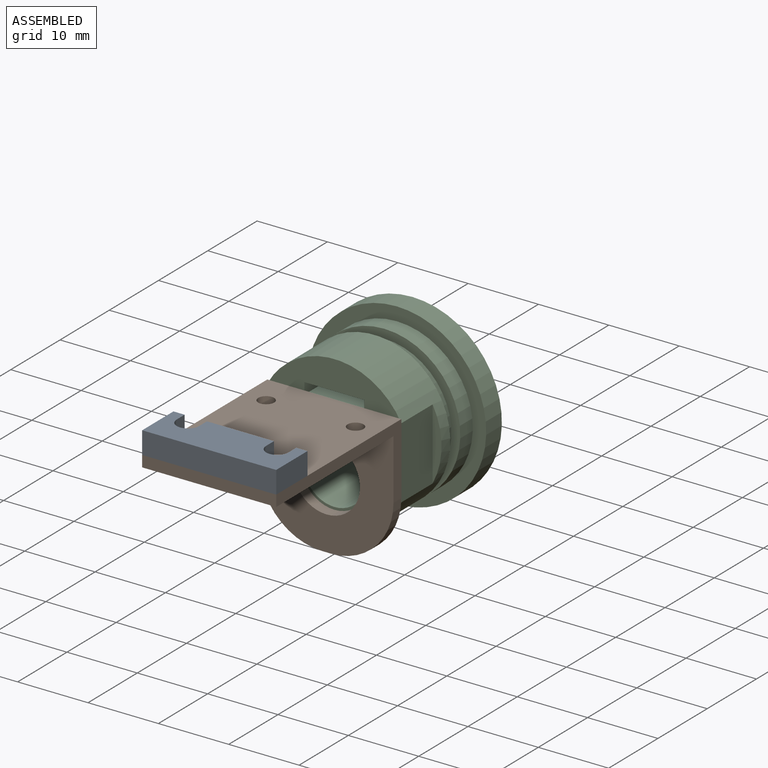
[diagram: assembled view]
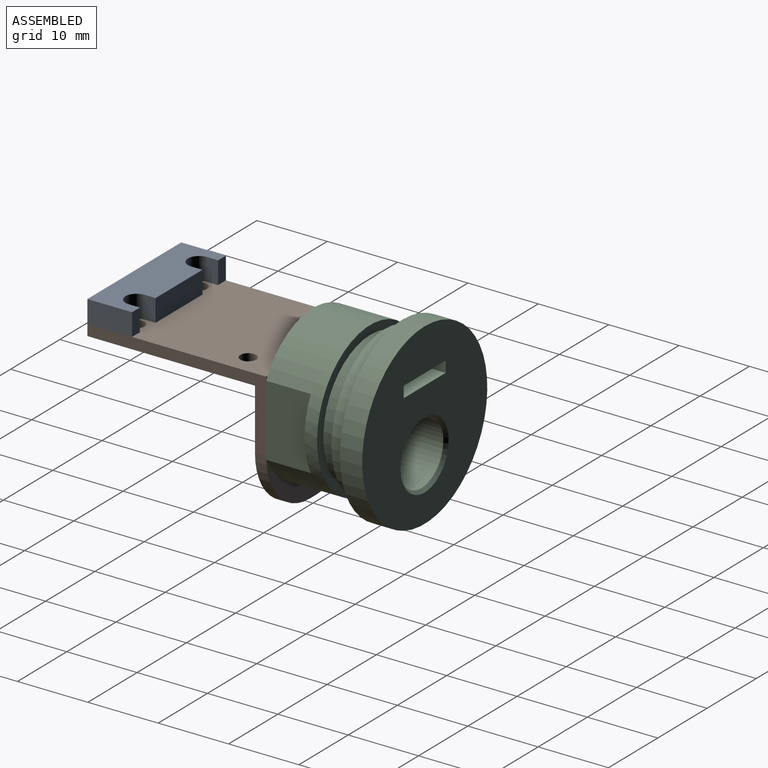
[diagram: assembled view, second angle]
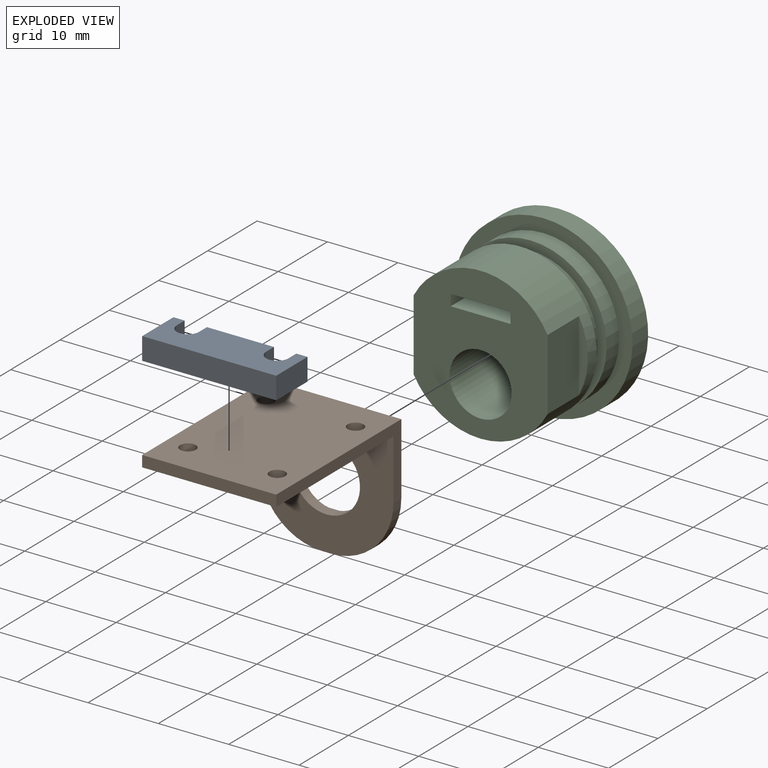
[diagram: exploded view]
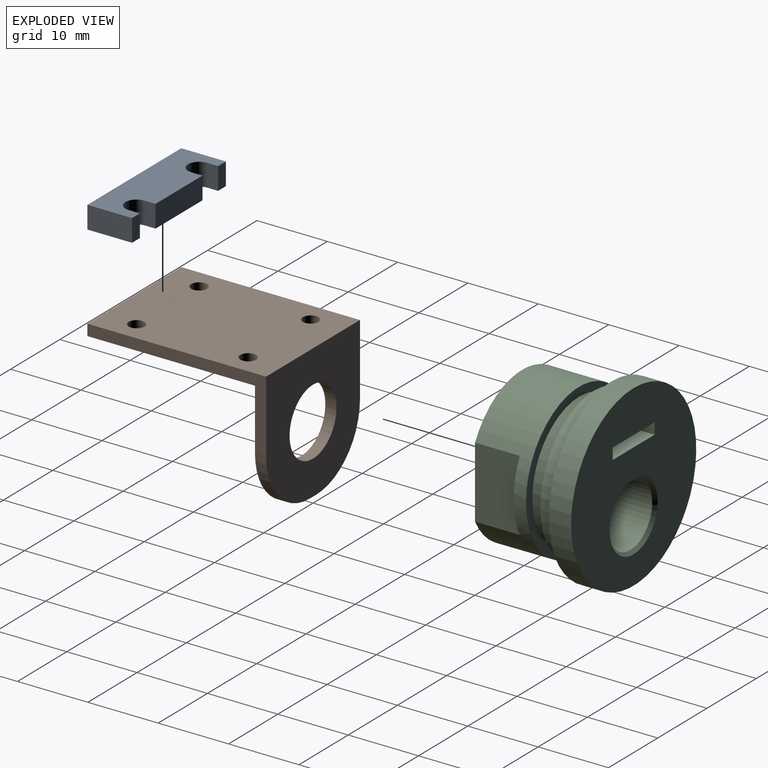
[diagram: exploded view, second angle]
ASSEMBLY  parts=3 mates=2
PART A: 14 faces, bbox 6.4x19.1x3.2 mm
  f0: plane 3.18x1.59mm, normal (-1,0,0), area 5mm2, adj f1,f11,f12,f13
  f1: plane 6.35x3.18mm, normal (0,-1,0), area 20.2mm2, adj f0,f2,f12,f13
  f2: plane 19.05x3.18mm, normal (1,0,0), area 60.5mm2, adj f1,f3,f12,f13
  f3: plane 6.35x3.18mm, normal (0,1,0), area 20.2mm2, adj f2,f4,f12,f13
  f4: plane 3.18x1.59mm, normal (-1,0,0), area 5mm2, adj f3,f5,f12,f13
  f5: plane 3.18x1.59mm, normal (0,-1,0), area 5mm2, adj f4,f6,f12,f13
  f6: cylinder r=1.59mm len=3.18mm, axis (0,0,-1), area 15.8mm2, adj f5,f7,f12,f13
  f7: plane 3.18x1.59mm, normal (0,1,0), area 5mm2, adj f6,f8,f12,f13
  f8: plane 9.53x3.18mm, normal (-1,0,0), area 30.2mm2, adj f7,f9,f12,f13
  f9: plane 3.18x1.59mm, normal (0,-1,0), area 5mm2, adj f8,f10,f12,f13
  f10: cylinder r=1.59mm len=3.18mm, axis (0,0,-1), area 15.8mm2, adj f9,f11,f12,f13
  f11: plane 3.18x1.59mm, normal (0,1,0), area 5mm2, adj f0,f10,f12,f13
  f12: plane 19.05x6.35mm, normal (0,0,1), area 103mm2, adj f0,f1,f2,f3,f4,f5,f6,f7
  f13: plane 19.05x6.35mm, normal (0,0,-1), area 103mm2, adj f0,f1,f2,f3,f4,f5,f6,f7
PART B: 15 faces, bbox 25.4x19.1x19.1 mm
  f0: plane 25.4x19.05mm, normal (0,0,1), area 467.8mm2, adj f4,f5,f6,f7,f9,f10,f11,f12
  f1: plane 1.59x1.27mm, normal (0,0,-1), area 2mm2, adj f2,f5,f13,f14
  f2: plane 19.05x17.46mm, normal (-1,0,0), area 227.5mm2, adj f1,f3,f6,f7,f8,f13,f14
  f3: plane 23.81x19.05mm, normal (0,0,-1), area 437.6mm2, adj f2,f4,f6,f7,f9,f10,f11,f12
  f4: plane 19.05x1.59mm, normal (-1,0,0), area 30.2mm2, adj f0,f3,f6,f7
  f5: plane 19.05x19.05mm, normal (1,0,0), area 257.7mm2, adj f0,f1,f6,f7,f8,f13,f14
  f6: plane 25.4x10.16mm, normal (0,1,0), area 53.9mm2, adj f0,f2,f3,f4,f5,f14
  f7: plane 25.4x10.16mm, normal (0,-1,0), area 53.9mm2, adj f0,f2,f3,f4,f5,f13
  f8: cylinder r=4.76mm len=9.53mm, axis (1,0,0), area 47.5mm2, adj f2,f5
  f9: cylinder r=1.13mm len=2.26mm, axis (0,0,1), area 11.3mm2, adj f0,f3
  f10: cylinder r=1.13mm len=2.26mm, axis (0,0,1), area 11.3mm2, adj f0,f3
  f11: cylinder r=1.13mm len=2.26mm, axis (0,0,1), area 11.3mm2, adj f0,f3
  f12: cylinder r=1.13mm len=2.26mm, axis (0,0,1), area 11.3mm2, adj f0,f3
  f13: cylinder r=8.89mm len=8.89mm, axis (1,0,0), area 22.2mm2, adj f1,f2,f5,f7
  f14: cylinder r=8.89mm len=8.89mm, axis (-1,0,0), area 22.2mm2, adj f1,f2,f5,f6
PART C: 19 faces, bbox 25.4x15.9x25.4 mm
  f0: plane 21.59x19.05mm, normal (0,-1,0), area 274mm2, adj f1,f6,f8,f13,f15,f16,f17,f18
  f1: cylinder r=10.79mm len=21.59mm, axis (0,-1,0), area 417mm2, adj f0,f10,f12,f13,f14,f15
  f2: cylinder r=10.79mm len=21.59mm, axis (0,-1,0), area 172.3mm2, adj f3,f9
  f3: plane 25.4x25.4mm, normal (0,-1,0), area 140.6mm2, adj f2,f4
  f4: cylinder r=12.7mm len=25.4mm, axis (0,-1,0), area 253.4mm2, adj f3,f5
  f5: plane 25.4x25.4mm, normal (0,1,0), area 419.2mm2, adj f4,f7,f8,f16,f17,f18
  f6: cylinder r=4.41mm len=15.43mm, axis (0,1,0), area 427.3mm2, adj f0,f7
  f7: cone r=4.85mm half-angle=45deg, axis (0,1,0), area 18.3mm2, adj f5,f6
  f8: plane 15.88x8.51mm, normal (0,0,1), area 135.1mm2, adj f0,f5,f16,f18
  f9: plane 21.59x21.59mm, normal (0,-1,0), area 81.1mm2, adj f2,f11
  f10: plane 21.59x21.59mm, normal (0,1,0), area 81.1mm2, adj f1,f11
  f11: cylinder r=9.53mm len=19.05mm, axis (0,-1,0), area 121.6mm2, adj f9,f10
  f12: plane 10.16x1.27mm, normal (0,-1,0), area 8.7mm2, adj f1,f13
  f13: plane 10.16x6.35mm, normal (1,0,0), area 64.5mm2, adj f0,f1,f12
  f14: plane 10.16x1.27mm, normal (0,-1,0), area 8.7mm2, adj f1,f15
  f15: plane 10.16x6.35mm, normal (-1,0,0), area 64.5mm2, adj f0,f1,f14
  f16: plane 15.88x1.6mm, normal (1,0,0), area 25.4mm2, adj f0,f5,f8,f17
  f17: plane 15.88x8.51mm, normal (0,0,-1), area 135.1mm2, adj f0,f5,f16,f18
  f18: plane 15.88x1.6mm, normal (-1,0,0), area 25.4mm2, adj f0,f5,f8,f17
PLACE A rot(axis=(0,0,-1),90deg) t=(-9.52,-19.05,5.61)mm
PLACE B rot(axis=(0,0,1),90deg) t=(9.52,0,-13.44)mm
PLACE C at identity
MATE fastened B.f8 <-> C.f6  axis (0,1,0) through (0,0,-3.81)mm
MATE fastened A.f10 <-> B.f9  axis (0,0,-1) through (-6.35,-20.64,5.61)mm
